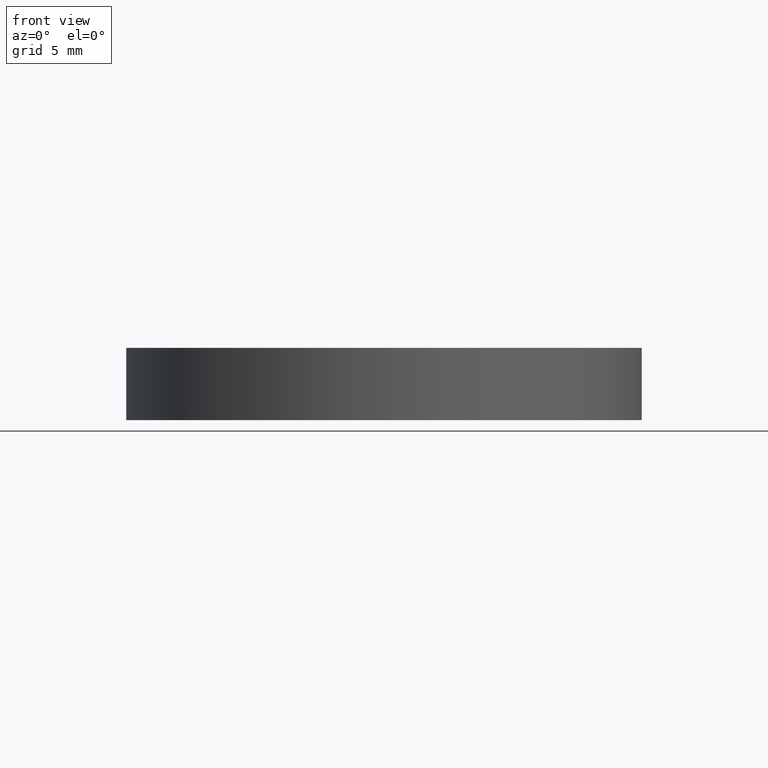
[diagram: clean part render]
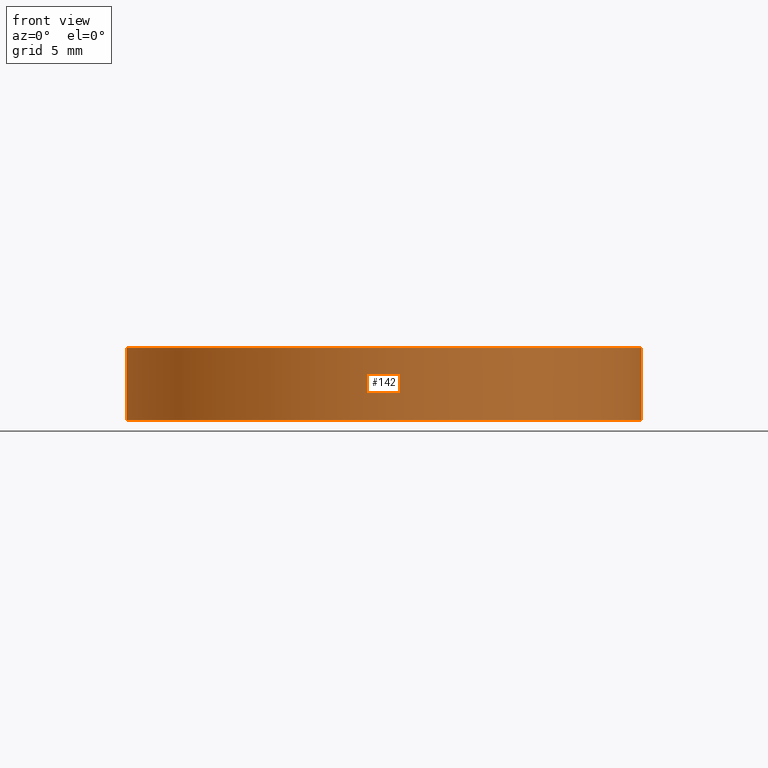
[diagram: same view with one face highlighted and labeled with its STEP entity id]
A machine part, front view. The second image highlights one B-rep face of the part: STEP entity #142.
In plain terms, the highlighted cylindrical surface (partial cylindrical patch) has radius 12.4968 mm, axis along (-0, -0, -1).
Its self-contained STEP definition (entity closure, byte-faithful):
#26 = VERTEX_POINT ( 'NONE', #303 ) ;
#79 = CARTESIAN_POINT ( 'NONE',  ( -12.49679999999999900, 0.0000000000000000000, 3.500000000000000000 ) ) ;
#138 = LINE ( 'NONE', #879, #542 ) ;
#142 = ADVANCED_FACE ( 'NONE', ( #411 ), #775, .T. ) ;
#143 = CARTESIAN_POINT ( 'NONE',  ( 0.0000000000000000000, 0.0000000000000000000, 0.0000000000000000000 ) ) ;
#178 = VERTEX_POINT ( 'NONE', #384 ) ;
#194 = CARTESIAN_POINT ( 'NONE',  ( -12.49679999999999900, 0.0000000000000000000, 0.0000000000000000000 ) ) ;
#200 = ORIENTED_EDGE ( 'NONE', *, *, #308, .T. ) ;
#221 = EDGE_CURVE ( 'NONE', #539, #178, #974, .T. ) ;
#230 = CARTESIAN_POINT ( 'NONE',  ( 0.0000000000000000000, 0.0000000000000000000, 0.0000000000000000000 ) ) ;
#303 = CARTESIAN_POINT ( 'NONE',  ( 12.49679999999999900, 1.530416611958464300E-015, 3.500000000000000000 ) ) ;
#308 = EDGE_CURVE ( 'NONE', #768, #539, #612, .T. ) ;
#384 = CARTESIAN_POINT ( 'NONE',  ( 12.49679999999999900, 1.530416611958464300E-015, 0.0000000000000000000 ) ) ;
#411 = FACE_OUTER_BOUND ( 'NONE', #893, .T. ) ;
#421 = AXIS2_PLACEMENT_3D ( 'NONE', #230, #796, #558 ) ;
#471 = CARTESIAN_POINT ( 'NONE',  ( 0.0000000000000000000, 0.0000000000000000000, 3.500000000000000000 ) ) ;
#497 = CARTESIAN_POINT ( 'NONE',  ( -12.49679999999999900, 0.0000000000000000000, 0.0000000000000000000 ) ) ;
#506 = DIRECTION ( 'NONE',  ( -0.0000000000000000000, -0.0000000000000000000, -1.000000000000000000 ) ) ;
#539 = VERTEX_POINT ( 'NONE', #194 ) ;
#542 = VECTOR ( 'NONE', #951, 1000.000000000000000 ) ;
#558 = DIRECTION ( 'NONE',  ( -1.000000000000000000, 0.0000000000000000000, 0.0000000000000000000 ) ) ;
#564 = AXIS2_PLACEMENT_3D ( 'NONE', #471, #801, #922 ) ;
#612 = LINE ( 'NONE', #497, #846 ) ;
#619 = DIRECTION ( 'NONE',  ( 0.0000000000000000000, 0.0000000000000000000, 1.000000000000000000 ) ) ;
#684 = CIRCLE ( 'NONE', #564, 12.49679999999999900 ) ;
#710 = AXIS2_PLACEMENT_3D ( 'NONE', #143, #619, #999 ) ;
#768 = VERTEX_POINT ( 'NONE', #79 ) ;
#769 = ORIENTED_EDGE ( 'NONE', *, *, #221, .T. ) ;
#773 = EDGE_CURVE ( 'NONE', #26, #178, #138, .T. ) ;
#775 = CYLINDRICAL_SURFACE ( 'NONE', #421, 12.49679999999999900 ) ;
#790 = ORIENTED_EDGE ( 'NONE', *, *, #773, .F. ) ;
#796 = DIRECTION ( 'NONE',  ( -0.0000000000000000000, -0.0000000000000000000, -1.000000000000000000 ) ) ;
#801 = DIRECTION ( 'NONE',  ( -0.0000000000000000000, -0.0000000000000000000, -1.000000000000000000 ) ) ;
#807 = EDGE_CURVE ( 'NONE', #26, #768, #684, .T. ) ;
#846 = VECTOR ( 'NONE', #506, 1000.000000000000000 ) ;
#879 = CARTESIAN_POINT ( 'NONE',  ( 12.49679999999999900, 1.530416611958464300E-015, 0.0000000000000000000 ) ) ;
#893 = EDGE_LOOP ( 'NONE', ( #790, #952, #200, #769 ) ) ;
#922 = DIRECTION ( 'NONE',  ( -1.000000000000000000, 0.0000000000000000000, 0.0000000000000000000 ) ) ;
#951 = DIRECTION ( 'NONE',  ( -0.0000000000000000000, -0.0000000000000000000, -1.000000000000000000 ) ) ;
#952 = ORIENTED_EDGE ( 'NONE', *, *, #807, .T. ) ;
#974 = CIRCLE ( 'NONE', #710, 12.49679999999999900 ) ;
#999 = DIRECTION ( 'NONE',  ( -1.000000000000000000, 0.0000000000000000000, 0.0000000000000000000 ) ) ;